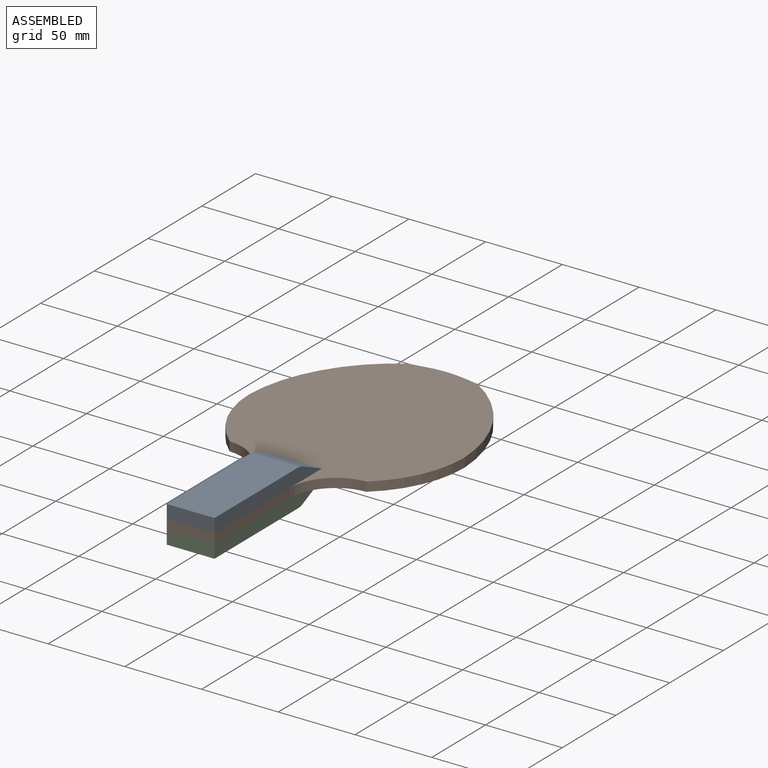
[diagram: assembled view]
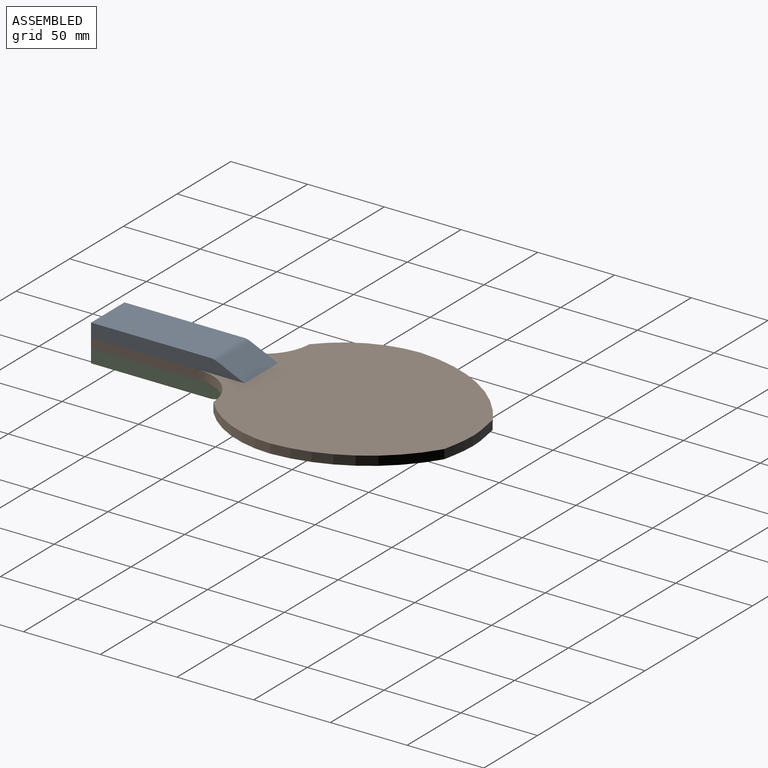
[diagram: assembled view, second angle]
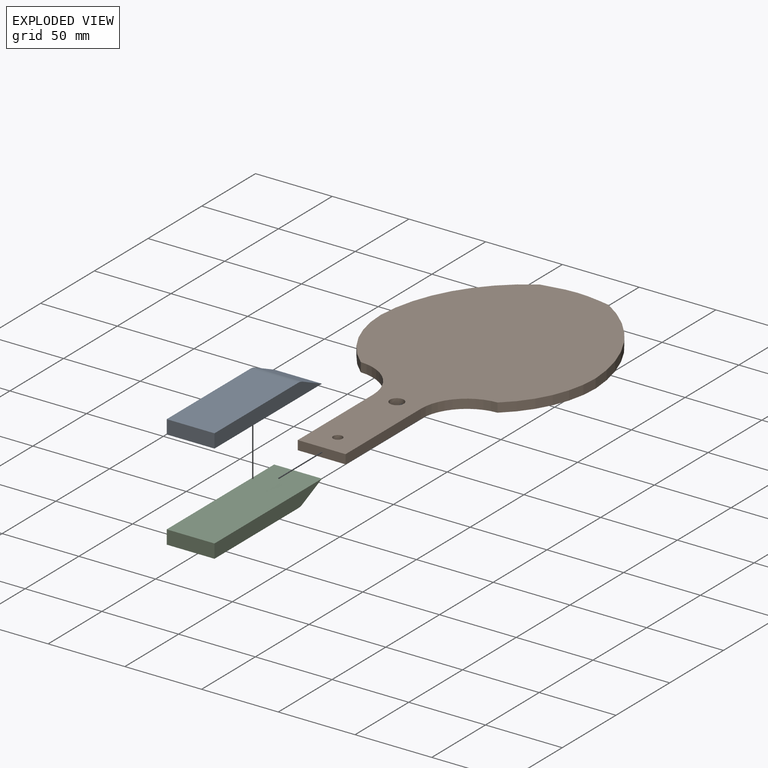
[diagram: exploded view]
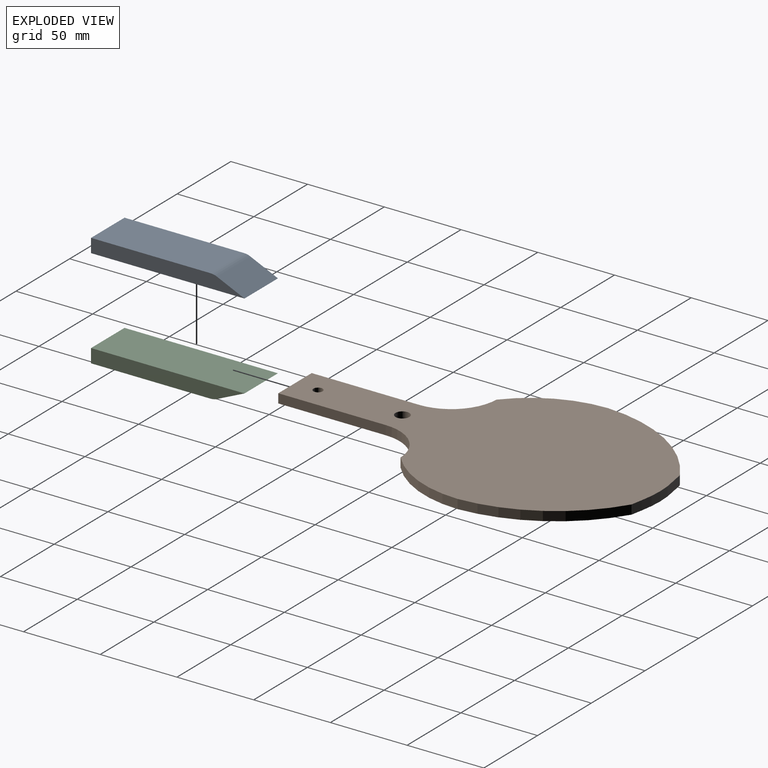
[diagram: exploded view, second angle]
ASSEMBLY  parts=3 mates=2
PART A: 7 faces, bbox 31.1x100x9 mm
  f0: plane 100x9mm, normal (-1,0,0), area 809.7mm2, adj f1,f3,f4,f5,f6
  f1: plane 77.85x31.13mm, normal (0,0,1), area 2423.7mm2, adj f0,f2,f3,f6
  f2: plane 100x9mm, normal (1,0,0), area 809.7mm2, adj f1,f3,f4,f5,f6
  f3: plane 31.13x9mm, normal (0,-1,0), area 280.2mm2, adj f0,f1,f2,f4
  f4: plane 100x31.13mm, normal (0,0,-1), area 3113.1mm2, adj f0,f2,f3,f5
  f5: plane 31.13x18.04mm, normal (0,0.41,0.91), area 615.9mm2, adj f0,f2,f4,f6
  f6: cylinder r=10mm len=31.13mm, axis (-1,0,0), area 131.6mm2, adj f0,f1,f2,f5
PART B: 14 faces, bbox 140x238.2x6 mm
  f0: plane 31.13x6mm, normal (0,-1,0), area 186.8mm2, adj f1,f11,f12,f13
  f1: plane 70x6mm, normal (1,0,0), area 420mm2, adj f0,f2,f12,f13
  f2: cylinder r=30.02mm len=30mm, axis (0,0,-1), area 276.9mm2, adj f1,f3,f12,f13
  f3: cylinder r=72.23mm len=55mm, axis (0,0,-1), area 375.1mm2, adj f2,f4,f12,f13
  f4: cylinder r=98.49mm len=80mm, axis (0,0,-1), area 581.4mm2, adj f3,f5,f12,f13
  f5: extruded ~45x6mm, area 272.9mm2, adj f4,f6,f12,f13
  f6: cylinder r=98.49mm len=80mm, axis (0,0,-1), area 581.4mm2, adj f5,f7,f12,f13
  f7: cylinder r=72.23mm len=55mm, axis (0,0,-1), area 375.1mm2, adj f6,f8,f12,f13
  f8: cylinder r=30.02mm len=30mm, axis (0,0,-1), area 276.9mm2, adj f7,f11,f12,f13
  f9: cylinder r=4.51mm len=9.03mm, axis (0,0,-1), area 170.1mm2, adj f12,f13
  f10: cylinder r=3mm len=6mm, axis (0,0,-1), area 113mm2, adj f12,f13
  f11: plane 70x6mm, normal (-1,0,0), area 420mm2, adj f0,f8,f12,f13
  f12: plane 238.16x140mm, normal (0,0,1), area 19203.4mm2, adj f0,f1,f2,f3,f4,f5,f6,f7
  f13: plane 238.16x140mm, normal (0,0,-1), area 19203.4mm2, adj f0,f1,f2,f3,f4,f5,f6,f7
PART C: same geometry as A
PLACE A t=(-32.28,-142.7,18.26)mm
PLACE B t=(-32.28,-32.7,12.26)mm
PLACE C rot(axis=(0,-1,0),180deg) t=(-32.28,-142.7,12.26)mm
MATE planar A.f4 <-> B.f12  axis (0,0,-1) through (-32.28,-192.7,18.26)mm
MATE planar C.f4 <-> B.f13  axis (0,0,1) through (-32.28,-192.7,12.26)mm
